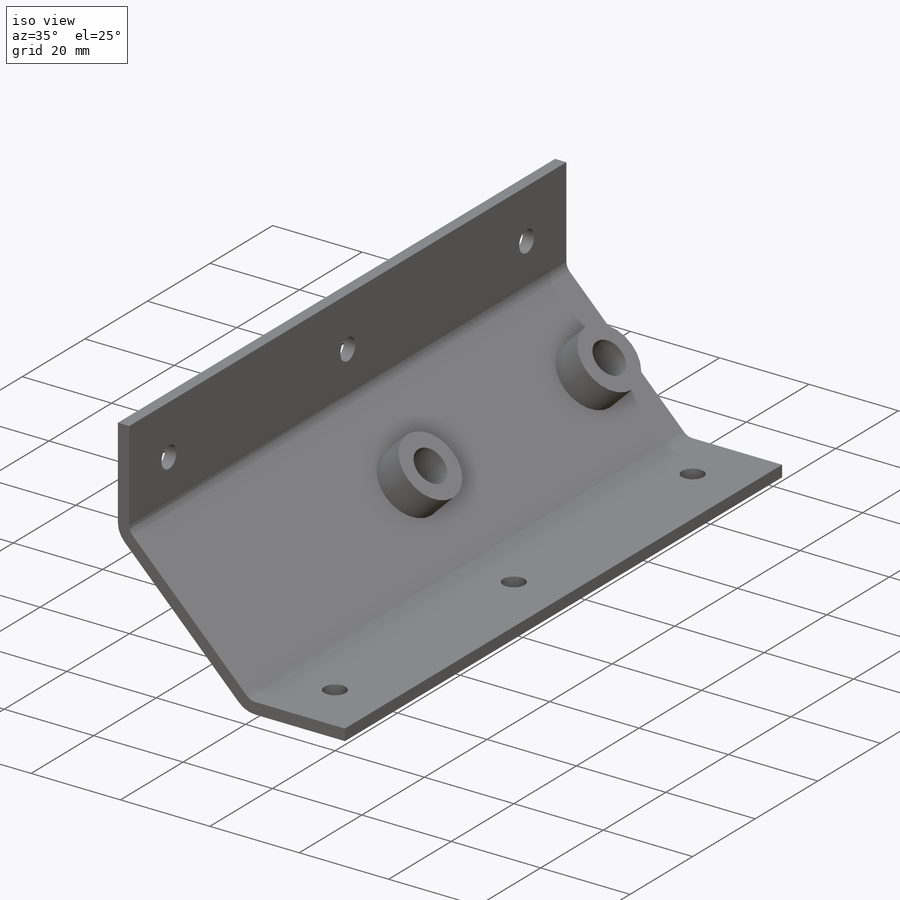
[diagram: iso view]
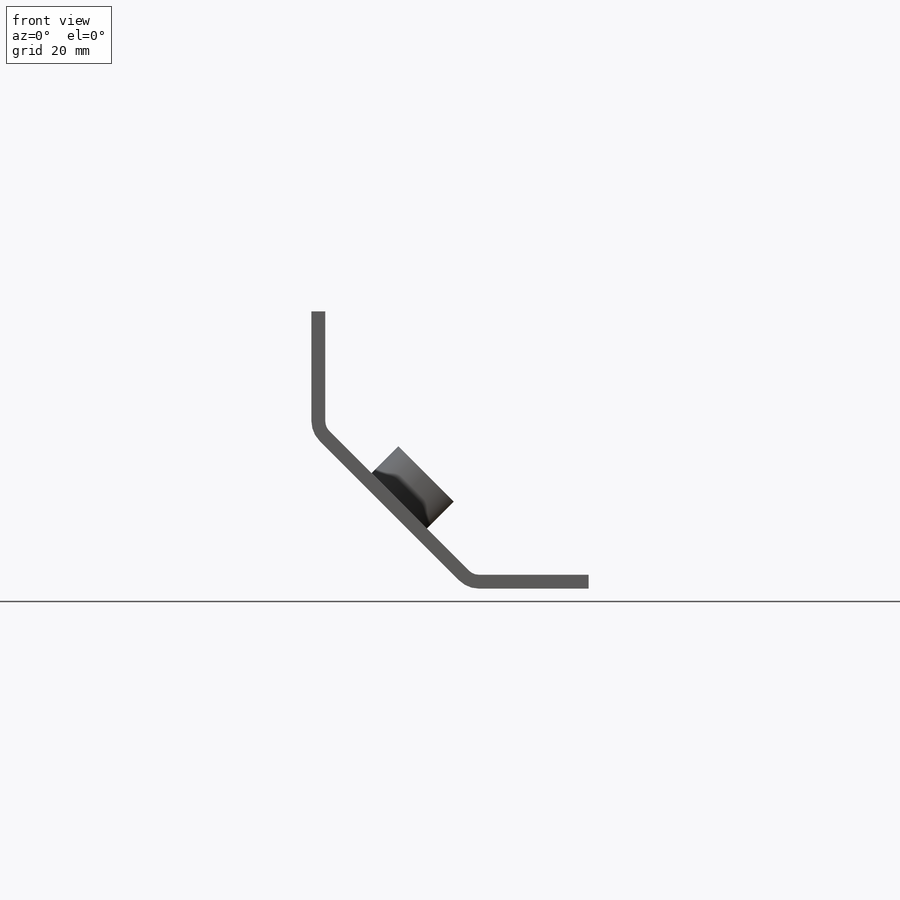
[diagram: front view]
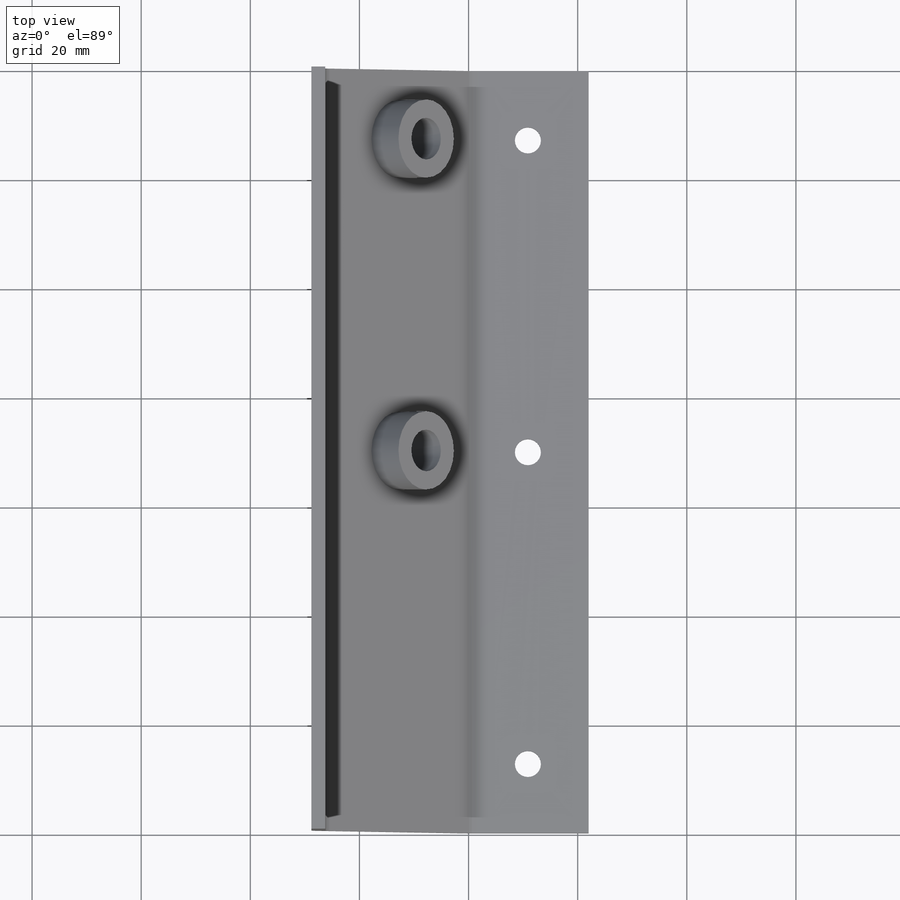
[diagram: top view]
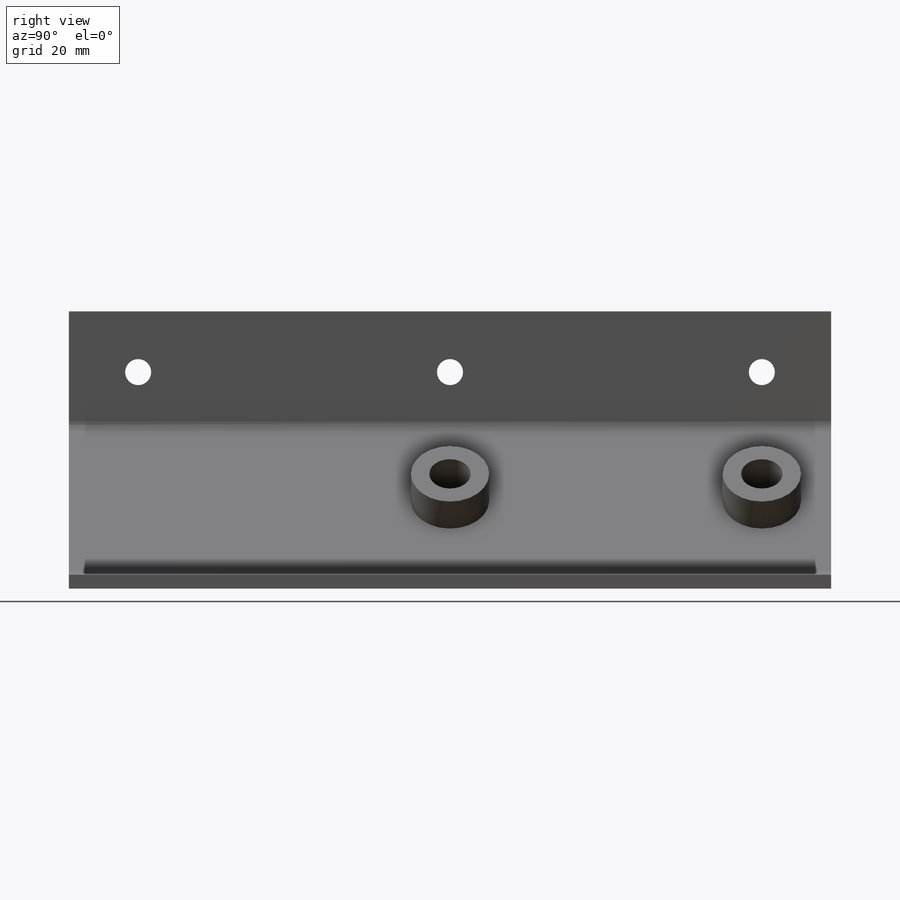
[diagram: right view]
SOLIDWORKS PART (.sldprt)
format: sldprt  version: not decoded by parser v0  size: 153,088 bytes
history: native  units: mm
features: sketch x5, cut_extrude x3, extrude x2, fillet x2, material x1 (+15 scaffold rows collapsed)
feature tree (28):
  scaffold x15  (default folders/planes/origin — collapsed)
  material  "Material <not specified>"
  sketch  "Sketch1"
  extrude  "Extrude1"  Depth=139.7mm
  sketch  "Sketch2"  dims[D1=57.15mm]
  cut_extrude  "Cut-Extrude1"  [1 undecoded]
  sketch  "Sketch3"  dims[D1=57.15mm]
  cut_extrude  "Cut-Extrude2"  [1 undecoded]
  sketch  "Sketch4"  dims[D1=57.15mm]
  cut_extrude  "Cut-Extrude3"  [1 undecoded]
  sketch  "Sketch5"  dims[D1=~6.683764mm]
  extrude  "Extrude2"  Depth=6.985mm
  fillet  "Fillet1"  Radius=2.54mm
  fillet  "Fillet2"  Radius=5.08mm
decode coverage: 8 of 12 modeling features carry decoded parameters
note: ~ marks probable driven/reference dimensions
note: 3 parameter values undecoded
summary: no parameter record found for 3 features
note: suppression state not decoded; provenance and decode notes live in map.json
